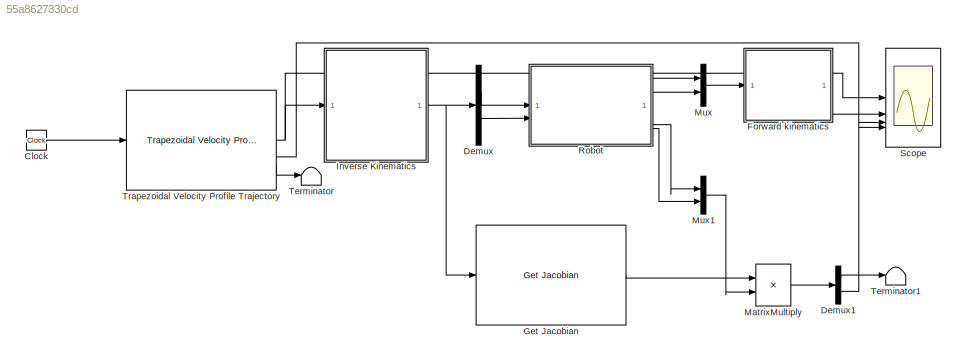
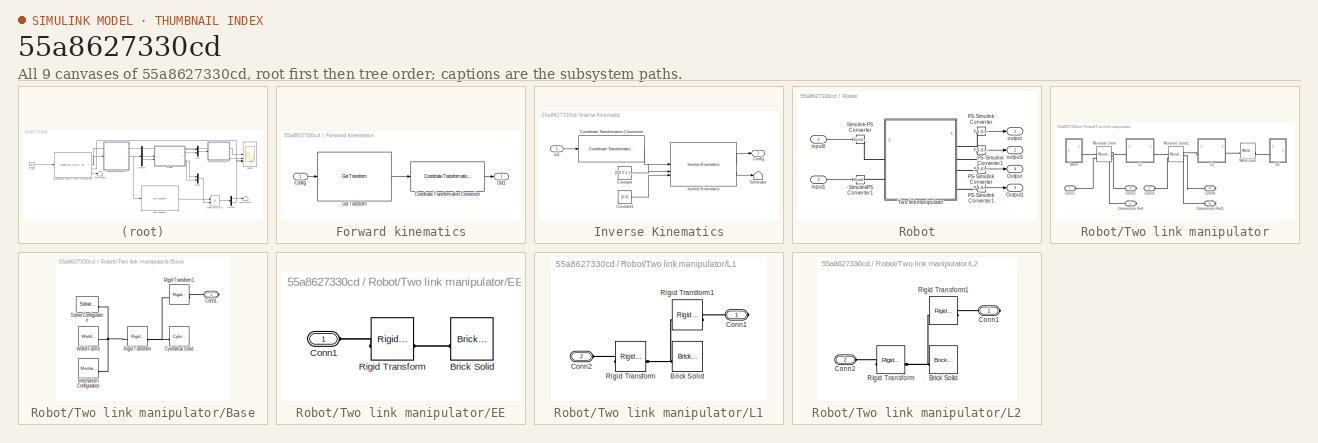
[diagram: thumbnail index - all 9 canvases of the model, root first then tree order]
MODEL slx_55a8627330cd
KIND model
CONFIG AbsTol = auto
CONFIG EnableMultiTasking = off
CONFIG FixedStep = auto
CONFIG MaxStep = auto
CONFIG MinStep = auto
CONFIG RelTol = 1e-3
CONFIG SampleTimeConstraint = Unconstrained
CONFIG SolverName = VariableStepAuto
CONFIG StartTime = 0.0
CONFIG StopTime = 10
BLOCK [Clock] Clock
BLOCK [Demux] Demux
  Outputs = 2
BLOCK [Demux] Demux1
  Outputs = 2
BLOCK [SubSystem] Forward kinematics
BLOCK [Inport] Forward kinematics/Config
BLOCK [Reference] Forward kinematics/Coordinate Transformation Conversion  REF=robotcorelib/Coordinate Transformation Conversion
  LibrarySourceBlock = navlib/Utilities/Coordinate Transformation Conversion
  SourceBlock = robotcorelib/Coordinate Transformation Conversion
  SourceType = robotics.slcore.internal.block.CoordinateTransformationConversion
BLOCK [Reference] Forward kinematics/Get Transform  REF=robotmaniplib/Get Transform
  SourceBlock = robotmaniplib/Get Transform
  SourceType = Get Transform
BLOCK [Outport] Forward kinematics/Out1
BLOCK [Reference] Get Jacobian  REF=robotmaniplib/Get Jacobian
  SourceBlock = robotmaniplib/Get Jacobian
  SourceType = Get Jacobian
BLOCK [SubSystem] Inverse Kinematics
BLOCK [Outport] Inverse Kinematics/Config
BLOCK [Constant] Inverse Kinematics/Constant
  Value = [0 0 0 1 1 1]
BLOCK [Constant] Inverse Kinematics/Constant1
  Value = [0 0]
BLOCK [Reference] Inverse Kinematics/Coordinate Transformation Conversion  REF=robotcorelib/Coordinate Transformation Conversion
  LibrarySourceBlock = navlib/Utilities/Coordinate Transformation Conversion
  SourceBlock = robotcorelib/Coordinate Transformation Conversion
  SourceType = robotics.slcore.internal.block.CoordinateTransformationConversion
BLOCK [Inport] Inverse Kinematics/In1
BLOCK [Reference] Inverse Kinematics/Inverse Kinematics  REF=robotmaniplib/Inverse Kinematics
  SourceBlock = robotmaniplib/Inverse Kinematics
  SourceType = Inverse Kinematics
BLOCK [Terminator] Inverse Kinematics/Terminator
BLOCK [Product] MatrixMultiply
  Multiplication = Matrix(*)
BLOCK [Mux] Mux
  DisplayOption = bar
  Inputs = 2
BLOCK [Mux] Mux1
  DisplayOption = bar
  Inputs = 2
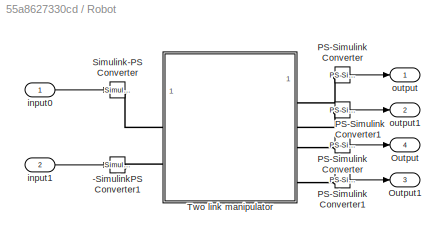
BLOCK [SubSystem] Robot
BLOCK [Reference] Robot/-SimulinkPS Converter1  REF=nesl_utility/Simulink-PS
Converter
  SourceBlock = nesl_utility/Simulink-PS\nConverter
  SourceType = Simulink-PS\nConverter
BLOCK [Outport] Robot/Output
  Port = 4
BLOCK [Outport] Robot/Output1
  Port = 3
BLOCK [Reference] Robot/PS-Simulink Converter  REF=nesl_utility/PS-Simulink
Converter
  SourceBlock = nesl_utility/PS-Simulink\nConverter
  SourceType = PS-Simulink\nConverter
BLOCK [Reference] Robot/PS-Simulink Converter   REF=nesl_utility/PS-Simulink
Converter
  SourceBlock = nesl_utility/PS-Simulink\nConverter
  SourceType = PS-Simulink\nConverter
BLOCK [Reference] Robot/PS-Simulink Converter1  REF=nesl_utility/PS-Simulink
Converter
  SourceBlock = nesl_utility/PS-Simulink\nConverter
  SourceType = PS-Simulink\nConverter
BLOCK [Reference] Robot/PS-Simulink Converter1   REF=nesl_utility/PS-Simulink
Converter
  SourceBlock = nesl_utility/PS-Simulink\nConverter
  SourceType = PS-Simulink\nConverter
BLOCK [Reference] Robot/Simulink-PS Converter   REF=nesl_utility/Simulink-PS
Converter
  SourceBlock = nesl_utility/Simulink-PS\nConverter
  SourceType = Simulink-PS\nConverter
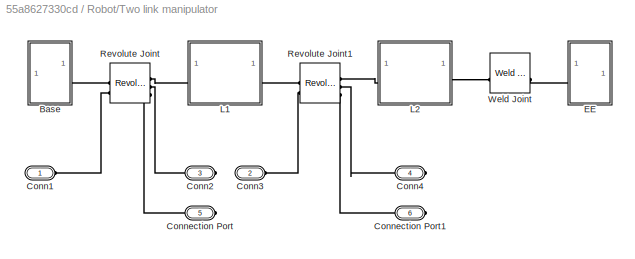
BLOCK [SubSystem] Robot/Two link manipulator
BLOCK [SubSystem] Robot/Two link manipulator/Base
BLOCK [PMIOPort] Robot/Two link manipulator/Base/Conn1
  Side = Right
BLOCK [Reference] Robot/Two link manipulator/Base/Cylindrical Solid  REF=sm_lib/Body Elements/Cylindrical Solid
  SourceBlock = sm_lib/Body Elements/Cylindrical Solid
  SourceType = Cylindrical Solid
BLOCK [Reference] Robot/Two link manipulator/Base/Mechanism Configuration  REF=sm_lib/Utilities/Mechanism
Configuration
  SourceBlock = sm_lib/Utilities/Mechanism\nConfiguration
  SourceType = Mechanism\nConfiguration
BLOCK [Reference] Robot/Two link manipulator/Base/Rigid Transform  REF=sm_lib/Frames and
Transforms/Rigid
Transform
  SourceBlock = sm_lib/Frames and\nTransforms/Rigid\nTransform
  SourceType = Rigid\nTransform
BLOCK [Reference] Robot/Two link manipulator/Base/Rigid Transform1  REF=sm_lib/Frames and
Transforms/Rigid
Transform
  SourceBlock = sm_lib/Frames and\nTransforms/Rigid\nTransform
  SourceType = Rigid\nTransform
BLOCK [Reference] Robot/Two link manipulator/Base/Solver Configuration  REF=nesl_utility/Solver
Configuration
  SourceBlock = nesl_utility/Solver\nConfiguration
  SourceType = Solver\nConfiguration
BLOCK [Reference] Robot/Two link manipulator/Base/World Frame  REF=sm_lib/Frames and
Transforms/World Frame
  SourceBlock = sm_lib/Frames and\nTransforms/World Frame
  SourceType = World Frame
BLOCK [PMIOPort] Robot/Two link manipulator/Conn1
  Side = Left
BLOCK [PMIOPort] Robot/Two link manipulator/Conn2
  Port = 3
  Side = Right
BLOCK [PMIOPort] Robot/Two link manipulator/Conn3
  Port = 2
  Side = Left
BLOCK [PMIOPort] Robot/Two link manipulator/Conn4
  Port = 4
  Side = Right
BLOCK [PMIOPort] Robot/Two link manipulator/Connection Port
  Port = 5
  Side = Right
BLOCK [PMIOPort] Robot/Two link manipulator/Connection Port1
  Port = 6
  Side = Right
BLOCK [SubSystem] Robot/Two link manipulator/EE
BLOCK [Reference] Robot/Two link manipulator/EE/Brick Solid  REF=sm_lib/Body Elements/Brick Solid
  SourceBlock = sm_lib/Body Elements/Brick Solid
  SourceType = Brick Solid
BLOCK [PMIOPort] Robot/Two link manipulator/EE/Conn1
  Side = Left
BLOCK [Reference] Robot/Two link manipulator/EE/Rigid Transform  REF=sm_lib/Frames and
Transforms/Rigid
Transform
  SourceBlock = sm_lib/Frames and\nTransforms/Rigid\nTransform
  SourceType = Rigid\nTransform
BLOCK [SubSystem] Robot/Two link manipulator/L1
BLOCK [Reference] Robot/Two link manipulator/L1/Brick Solid  REF=sm_lib/Body Elements/Brick Solid
  SourceBlock = sm_lib/Body Elements/Brick Solid
  SourceType = Brick Solid
BLOCK [PMIOPort] Robot/Two link manipulator/L1/Conn1
  Side = Right
BLOCK [PMIOPort] Robot/Two link manipulator/L1/Conn2
  Port = 2
  Side = Left
BLOCK [Reference] Robot/Two link manipulator/L1/Rigid Transform  REF=sm_lib/Frames and
Transforms/Rigid
Transform
  SourceBlock = sm_lib/Frames and\nTransforms/Rigid\nTransform
  SourceType = Rigid\nTransform
BLOCK [Reference] Robot/Two link manipulator/L1/Rigid Transform1  REF=sm_lib/Frames and
Transforms/Rigid
Transform
  SourceBlock = sm_lib/Frames and\nTransforms/Rigid\nTransform
  SourceType = Rigid\nTransform
BLOCK [SubSystem] Robot/Two link manipulator/L2
BLOCK [Reference] Robot/Two link manipulator/L2/Brick Solid  REF=sm_lib/Body Elements/Brick Solid
  SourceBlock = sm_lib/Body Elements/Brick Solid
  SourceType = Brick Solid
BLOCK [PMIOPort] Robot/Two link manipulator/L2/Conn1
  Side = Right
BLOCK [PMIOPort] Robot/Two link manipulator/L2/Conn2
  Port = 2
  Side = Left
BLOCK [Reference] Robot/Two link manipulator/L2/Rigid Transform  REF=sm_lib/Frames and
Transforms/Rigid
Transform
  SourceBlock = sm_lib/Frames and\nTransforms/Rigid\nTransform
  SourceType = Rigid\nTransform
BLOCK [Reference] Robot/Two link manipulator/L2/Rigid Transform1  REF=sm_lib/Frames and
Transforms/Rigid
Transform
  SourceBlock = sm_lib/Frames and\nTransforms/Rigid\nTransform
  SourceType = Rigid\nTransform
BLOCK [Reference] Robot/Two link manipulator/Revolute Joint  REF=sm_lib/Joints/Revolute Joint
  SourceBlock = sm_lib/Joints/Revolute Joint
  SourceType = Revolute Joint
BLOCK [Reference] Robot/Two link manipulator/Revolute Joint1  REF=sm_lib/Joints/Revolute Joint
  SourceBlock = sm_lib/Joints/Revolute Joint
  SourceType = Revolute Joint
BLOCK [Reference] Robot/Two link manipulator/Weld Joint  REF=sm_lib/Joints/Weld Joint
  SourceBlock = sm_lib/Joints/Weld Joint
  SourceType = Weld Joint
BLOCK [Inport] Robot/input0
BLOCK [Inport] Robot/input1
  Port = 2
BLOCK [Outport] Robot/output
BLOCK [Outport] Robot/output1
  Port = 2
BLOCK [Scope] Scope
  Floating = off
  NumInputPorts = 4
  ScopeSpecificationString = Simulink.scopes.TimeScopeBlockCfg('CurrentConfiguration', extmgr.ConfigurationSet(extmgr.Configuration('Core','General UI',true,'FigureColor',[1 1 1],'ShowMainToolbar',false),extmgr.Configuration('Core','Source UI',true),extmgr.Configuration('Sources','WiredSimulink',true),extmgr.Configuration('Visuals','Time Domain',true,'SerializedDisplays',{struct('MinYLimReal','-0.04375','MaxYLimReal','0.39375...<+5060ch>
BLOCK [Terminator] Terminator
BLOCK [Terminator] Terminator1
BLOCK [Reference] Trapezoidal Velocity Profile Trajectory  REF=robotcorelib/Trapezoidal Velocity Profile Trajectory
  LibrarySourceBlock = robotutilslib/Trapezoidal Velocity Profile Trajectory
  SourceBlock = robotcorelib/Trapezoidal Velocity Profile Trajectory
  SourceType = robotics.slcore.internal.block.TrapVelTrajSys
LINE Clock:1 -> Trapezoidal Velocity Profile Trajectory:1
LINE Demux1:1 -> Terminator1:1
LINE Demux1:2 -> Scope:4
LINE Demux:1 -> Robot:1
LINE Demux:2 -> Robot:2
LINE Forward kinematics/Config:1 -> Forward kinematics/Get Transform:1
LINE Forward kinematics/Coordinate Transformation Conversion:1 -> Forward kinematics/Out1:1
LINE Forward kinematics/Get Transform:1 -> Forward kinematics/Coordinate Transformation Conversion:1
LINE Forward kinematics:1 -> Scope:2
LINE Get Jacobian:1 -> MatrixMultiply:1
LINE Inverse Kinematics/Constant1:1 -> Inverse Kinematics/Inverse Kinematics:3
LINE Inverse Kinematics/Constant:1 -> Inverse Kinematics/Inverse Kinematics:2
LINE Inverse Kinematics/Coordinate Transformation Conversion:1 -> Inverse Kinematics/Inverse Kinematics:1
LINE Inverse Kinematics/In1:1 -> Inverse Kinematics/Coordinate Transformation Conversion:1
LINE Inverse Kinematics/Inverse Kinematics:1 -> Inverse Kinematics/Config:1
LINE Inverse Kinematics/Inverse Kinematics:2 -> Inverse Kinematics/Terminator:1
NET Inverse Kinematics:1 -> Demux:1, Get Jacobian:1
LINE MatrixMultiply:1 -> Demux1:1
LINE Mux1:1 -> MatrixMultiply:2
LINE Mux:1 -> Forward kinematics:1
LINE Robot/PS-Simulink Converter :1 -> Robot/output:1
LINE Robot/PS-Simulink Converter1 :1 -> Robot/output1:1
LINE Robot/PS-Simulink Converter1:1 -> Robot/Output1:1
LINE Robot/PS-Simulink Converter:1 -> Robot/Output:1
LINE Robot/input0:1 -> Robot/Simulink-PS Converter :1
LINE Robot/input1:1 -> Robot/-SimulinkPS Converter1:1
LINE Robot:1 -> Mux:1
LINE Robot:2 -> Mux:2
LINE Robot:3 -> Mux1:1
LINE Robot:4 -> Mux1:2
NET Trapezoidal Velocity Profile Trajectory:1 -> Inverse Kinematics:1, Scope:1
LINE Trapezoidal Velocity Profile Trajectory:2 -> Scope:3
LINE Trapezoidal Velocity Profile Trajectory:3 -> Terminator:1
PLINE Robot/-SimulinkPS Converter1:RConn1 -- Robot/Two link manipulator:LConn2
PLINE Robot/PS-Simulink Converter :LConn1 -- Robot/Two link manipulator:RConn1
PLINE Robot/PS-Simulink Converter1 :LConn1 -- Robot/Two link manipulator:RConn2
PLINE Robot/PS-Simulink Converter1:LConn1 -- Robot/Two link manipulator:RConn4
PLINE Robot/PS-Simulink Converter:LConn1 -- Robot/Two link manipulator:RConn3
PLINE Robot/Simulink-PS Converter :RConn1 -- Robot/Two link manipulator:LConn1
PLINE Robot/Two link manipulator/Base/Conn1:RConn1 -- Robot/Two link manipulator/Base/Rigid Transform1:RConn1
PNET net1: Robot/Two link manipulator/Base/Cylindrical Solid:RConn1 -- Robot/Two link manipulator/Base/Rigid Transform1:LConn1 -- Robot/Two link manipulator/Base/Rigid Transform:RConn1
PNET net2: Robot/Two link manipulator/Base/Mechanism Configuration:RConn1 -- Robot/Two link manipulator/Base/Rigid Transform:LConn1 -- Robot/Two link manipulator/Base/Solver Configuration:RConn1 -- Robot/Two link manipulator/Base/World Frame:RConn1
PLINE Robot/Two link manipulator/Base:RConn1 -- Robot/Two link manipulator/Revolute Joint:LConn1
PLINE Robot/Two link manipulator/Conn1:RConn1 -- Robot/Two link manipulator/Revolute Joint:LConn2
PLINE Robot/Two link manipulator/Conn2:RConn1 -- Robot/Two link manipulator/Revolute Joint:RConn2
PLINE Robot/Two link manipulator/Conn3:RConn1 -- Robot/Two link manipulator/Revolute Joint1:LConn2
PLINE Robot/Two link manipulator/Conn4:RConn1 -- Robot/Two link manipulator/Revolute Joint1:RConn2
PLINE Robot/Two link manipulator/Connection Port1:RConn1 -- Robot/Two link manipulator/Revolute Joint1:RConn3
PLINE Robot/Two link manipulator/Connection Port:RConn1 -- Robot/Two link manipulator/Revolute Joint:RConn3
PLINE Robot/Two link manipulator/EE/Brick Solid:RConn1 -- Robot/Two link manipulator/EE/Rigid Transform:RConn1
PLINE Robot/Two link manipulator/EE/Conn1:RConn1 -- Robot/Two link manipulator/EE/Rigid Transform:LConn1
PLINE Robot/Two link manipulator/EE:LConn1 -- Robot/Two link manipulator/Weld Joint:RConn1
PNET net3: Robot/Two link manipulator/L1/Brick Solid:RConn1 -- Robot/Two link manipulator/L1/Rigid Transform1:LConn1 -- Robot/Two link manipulator/L1/Rigid Transform:RConn1
PLINE Robot/Two link manipulator/L1/Conn1:RConn1 -- Robot/Two link manipulator/L1/Rigid Transform1:RConn1
PLINE Robot/Two link manipulator/L1/Conn2:RConn1 -- Robot/Two link manipulator/L1/Rigid Transform:LConn1
PLINE Robot/Two link manipulator/L1:LConn1 -- Robot/Two link manipulator/Revolute Joint:RConn1
PLINE Robot/Two link manipulator/L1:RConn1 -- Robot/Two link manipulator/Revolute Joint1:LConn1
PNET net4: Robot/Two link manipulator/L2/Brick Solid:RConn1 -- Robot/Two link manipulator/L2/Rigid Transform1:LConn1 -- Robot/Two link manipulator/L2/Rigid Transform:RConn1
PLINE Robot/Two link manipulator/L2/Conn1:RConn1 -- Robot/Two link manipulator/L2/Rigid Transform1:RConn1
PLINE Robot/Two link manipulator/L2/Conn2:RConn1 -- Robot/Two link manipulator/L2/Rigid Transform:LConn1
PLINE Robot/Two link manipulator/L2:LConn1 -- Robot/Two link manipulator/Revolute Joint1:RConn1
PLINE Robot/Two link manipulator/L2:RConn1 -- Robot/Two link manipulator/Weld Joint:LConn1
note: NET lines group one-source signal fan-out (src -> all destinations, sorted); 1:1 wires keep LINE; PNET lines group multi-terminal physical nets as a canonical sorted terminal list (undirected conserving connections); 2-terminal nets keep the pairwise PLINE form
